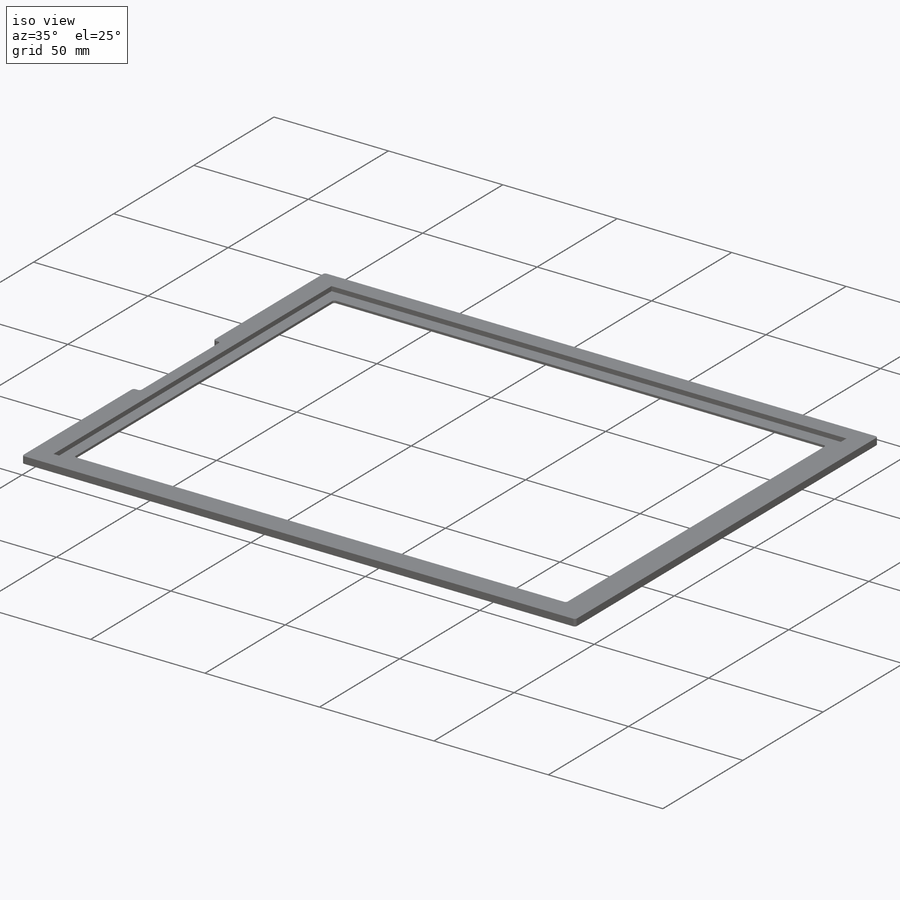
[diagram: iso view]
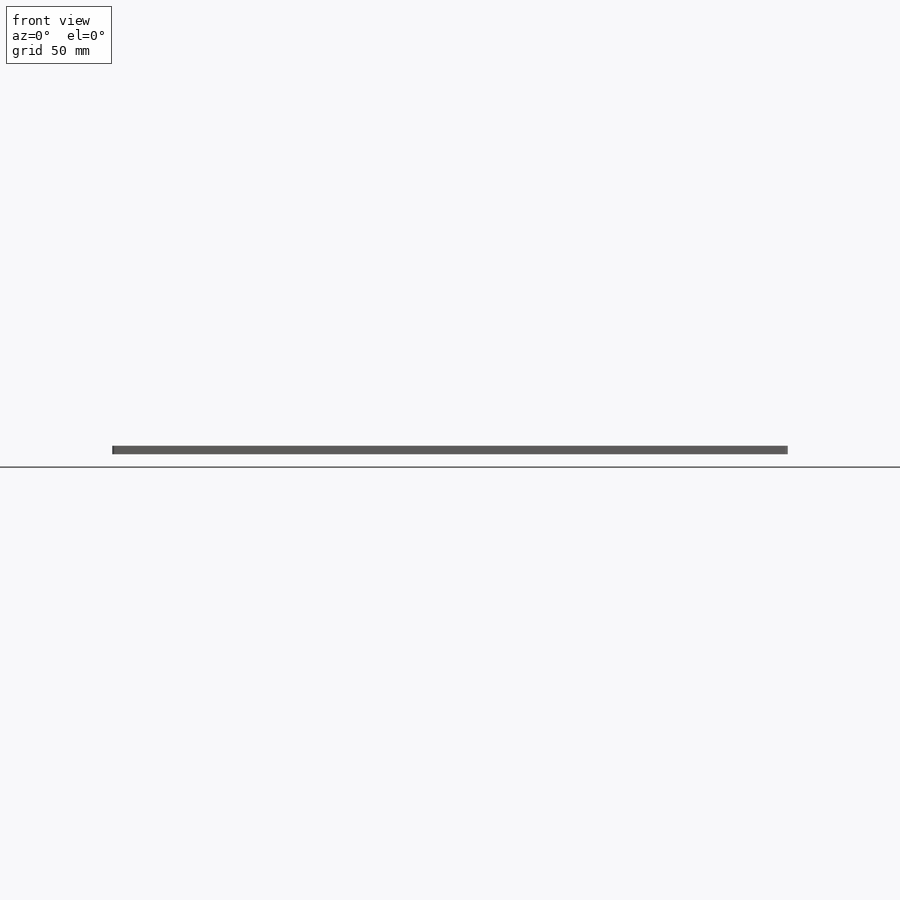
[diagram: front view]
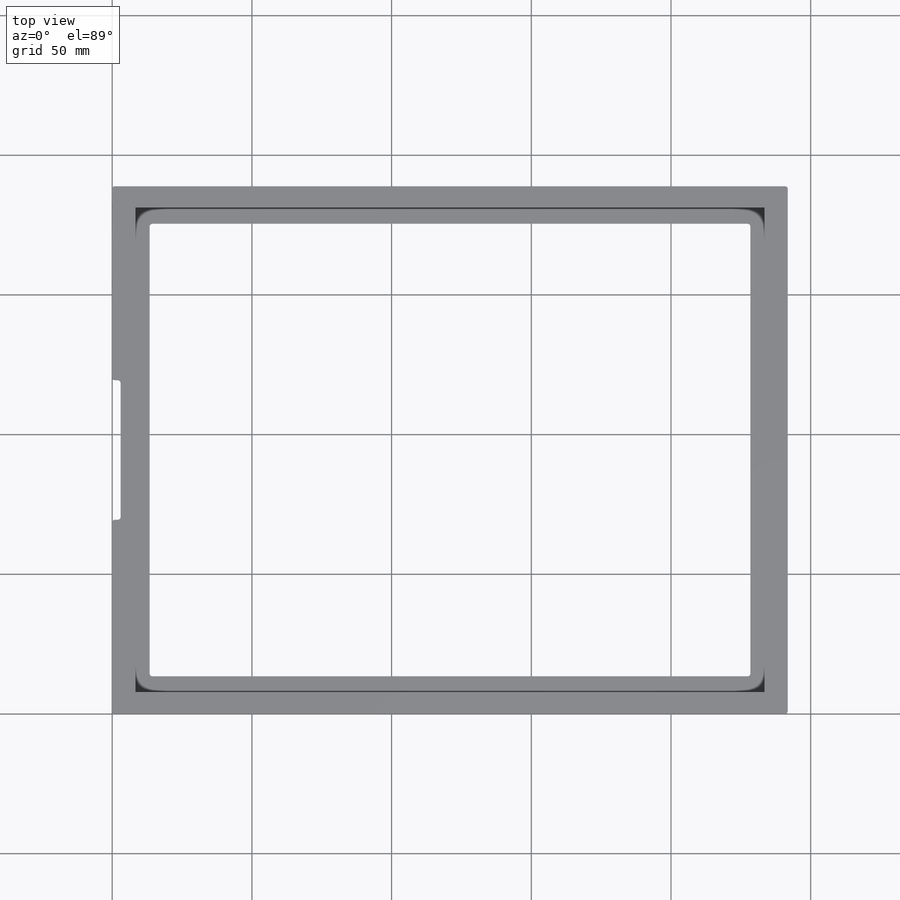
[diagram: top view]
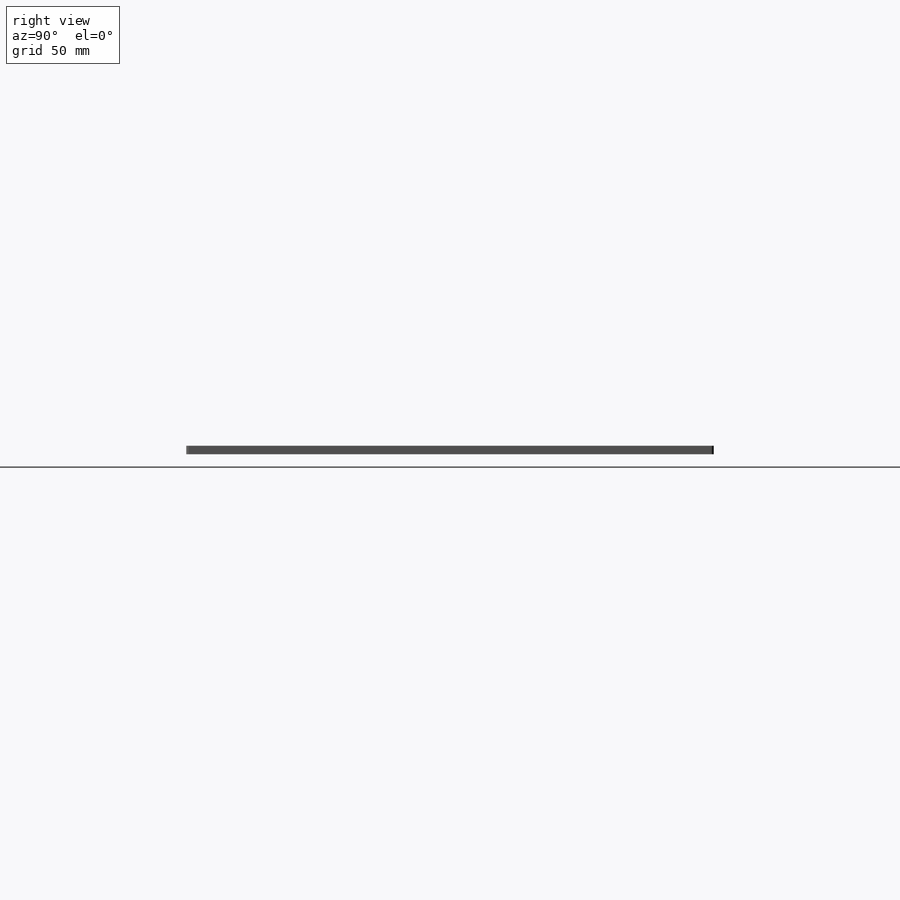
[diagram: right view]
SOLIDWORKS PART (.sldprt)
format: sldprt  version: not decoded by parser v0  size: 304,128 bytes
history: native  units: mm
features: extrude x32, sketch x4, cut_extrude x3, material x1, fillet x1 (+13 scaffold rows collapsed)
feature tree (54):
  scaffold x13  (default folders/planes/origin — collapsed)
  material  "Material <not specified>"
  sketch  "Sketch1"  dims[D1=188.8mm D2=241.8mm D3=215.0mm D4=162.0mm]
  extrude  "Boss-Extrude1"  Depth=3mm
  sketch  "Sketch2"  dims[D1=173.5mm D2=225.0mm]
  cut_extrude  "Cut-Extrude1"  Depth=2mm flange_len_value=0
  extrude  "Associativity_IDs"  Depth=0 flange_len_value=0
  extrude  "Associativity_IDs"  Depth=0 flange_len_value=0
  extrude  "Associativity_IDs"  Depth=0 flange_len_value=0
  extrude  "Associativity_IDs"  Depth=0 flange_len_value=0
  extrude  "Associativity_IDs"  Depth=0 flange_len_value=0
  extrude  "Associativity_IDs"  Depth=0 flange_len_value=0
  extrude  "Associativity_IDs"  Depth=0 flange_len_value=0
  extrude  "Associativity_IDs"  Depth=0 flange_len_value=0
  extrude  "Associativity_IDs"  Depth=0 flange_len_value=0
  extrude  "Associativity_IDs"  Depth=0 flange_len_value=0
  extrude  "Associativity_IDs"  Depth=0 flange_len_value=0
  extrude  "Associativity_IDs"  Depth=0 flange_len_value=0
  extrude  "Associativity_IDs"  Depth=0 flange_len_value=0
  extrude  "Associativity_IDs"  Depth=0 flange_len_value=0
  extrude  "Associativity_IDs"  Depth=0 flange_len_value=0
  sketch  "Sketch3"  dims[D1=50.0mm D2=3.0mm]
  cut_extrude  "Cut-Extrude2"  Depth=5mm
  fillet  "Fillet1"  Radius=1mm
  extrude  "Associativity_IDs"  Depth=0 flange_len_value=0
  extrude  "Associativity_IDs"  Depth=0 flange_len_value=0
  extrude  "Associativity_IDs"  Depth=0 flange_len_value=0
  extrude  "Associativity_IDs"  Depth=0 flange_len_value=0
  extrude  "Associativity_IDs"  Depth=0 flange_len_value=0
  extrude  "Associativity_IDs"  Depth=0 flange_len_value=0
  extrude  "Associativity_IDs"  Depth=0 flange_len_value=0
  extrude  "Associativity_IDs"  Depth=0 flange_len_value=0
  extrude  "Associativity_IDs"  Depth=0 flange_len_value=0
  extrude  "Associativity_IDs"  Depth=0 flange_len_value=0
  extrude  "Associativity_IDs"  Depth=0 flange_len_value=0
  extrude  "Associativity_IDs"  Depth=0 flange_len_value=0
  extrude  "Associativity_IDs"  Depth=0 flange_len_value=0
  extrude  "Associativity_IDs"  Depth=0 flange_len_value=0
  extrude  "Associativity_IDs"  Depth=0 flange_len_value=0
  extrude  "Associativity_IDs"  Depth=0 flange_len_value=0
  sketch  "Sketch4"  dims[D1=2.0mm D2=30.0mm D3=30.0mm D4=30.0mm D5=110.0mm]
  cut_extrude  "Cut-Extrude3"  [1 undecoded]
decode coverage: 39 of 40 modeling features carry decoded parameters
note: 1 parameter value undecoded
note: suppression state not decoded; provenance and decode notes live in map.json
